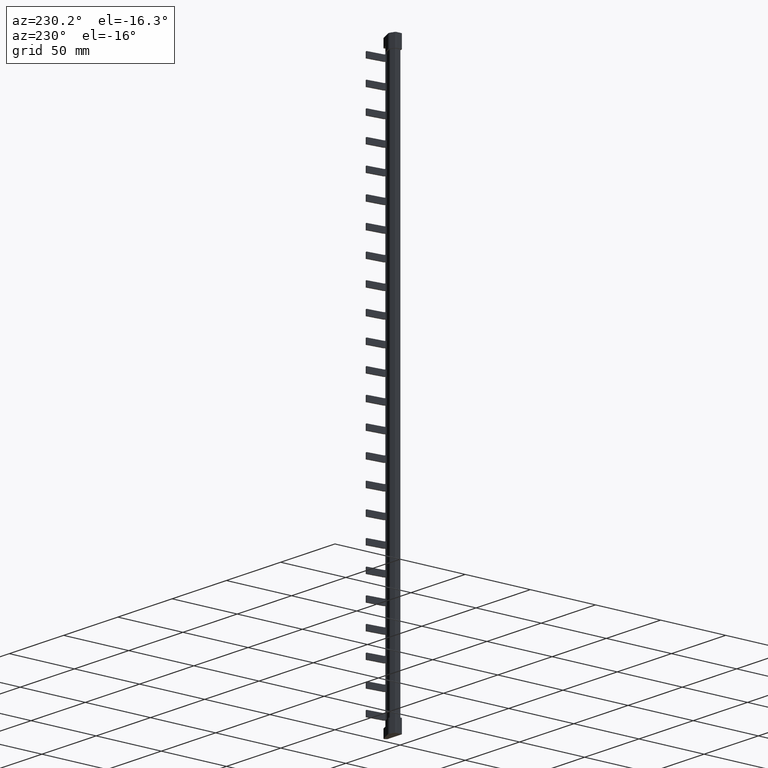
[diagram: clean part render]
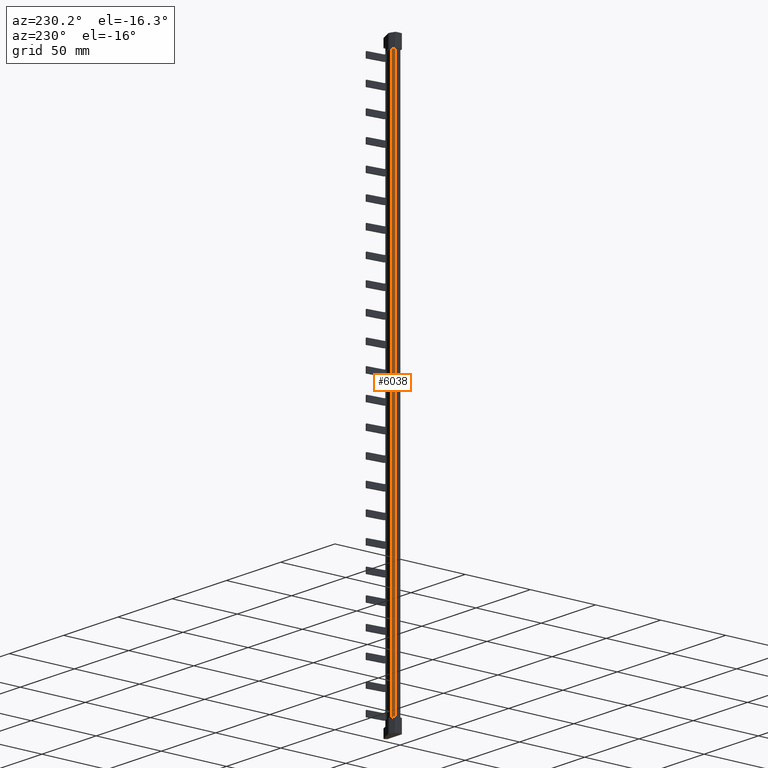
[diagram: same view with one face highlighted and labeled with its STEP entity id]
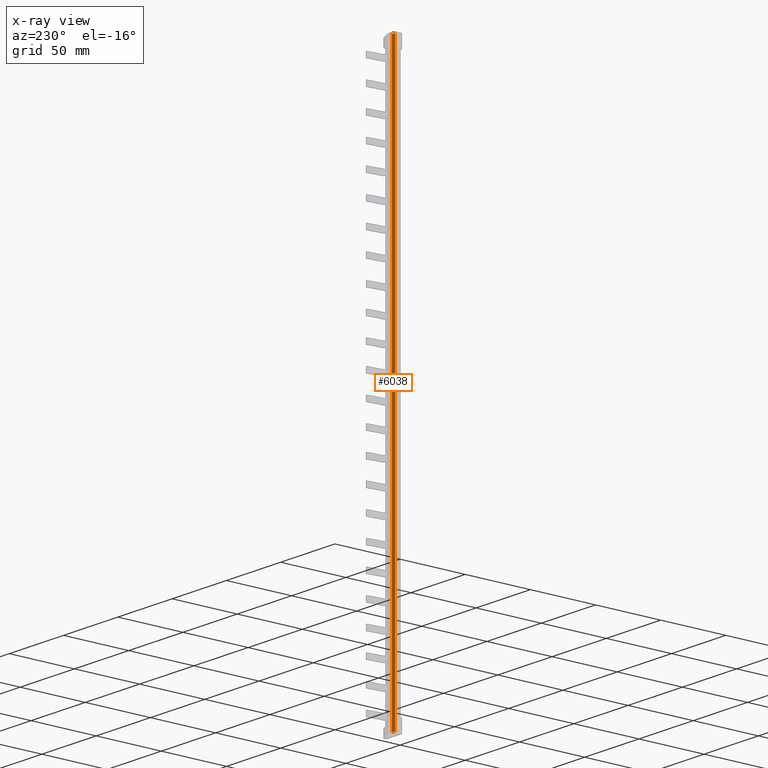
[diagram: x-ray of the same camera — body ghosted, the highlighted face saturated]
A machine part, auxiliary view. The second image highlights one B-rep face of the part: STEP entity #6038.
The next image is the same camera in x-ray: the body ghosted, the highlighted face saturated — about 0% of this face is hidden behind the body in this view.
In plain terms, the highlighted planar face has unit normal (-0.3358, 0.9419, 0).
Its self-contained STEP definition (entity closure, byte-faithful):
#2735 = ORIENTED_EDGE ( 'NONE', *, *, #19089, .F. ) ;
#2747 = ORIENTED_EDGE ( 'NONE', *, *, #19090, .T. ) ;
#2752 = ORIENTED_EDGE ( 'NONE', *, *, #26541, .T. ) ;
#2764 = ORIENTED_EDGE ( 'NONE', *, *, #26512, .T. ) ;
#2772 = ORIENTED_EDGE ( 'NONE', *, *, #19074, .T. ) ;
#2831 = ORIENTED_EDGE ( 'NONE', *, *, #19118, .F. ) ;
#3288 = EDGE_LOOP ( 'NONE', ( #2735, #2831, #2764, #2752, #2772, #2747 ) ) ;
#3729 = AXIS2_PLACEMENT_3D ( 'NONE', #28381, #28384, #28385 ) ;
#6038 = ADVANCED_FACE ( 'NONE', ( #28379 ), #28362, .T. ) ;
#8818 = DIRECTION ( 'NONE',  ( 0.0000000000000000000, 0.0000000000000000000, -1.000000000000000000 ) ) ;
#8874 = CARTESIAN_POINT ( 'NONE',  ( 1.856511742230759100, 4.798317562778330500, 199.0000000000000000 ) ) ;
#8926 = LINE ( 'NONE', #8874, #18200 ) ;
#9002 = LINE ( 'NONE', #9012, #18163 ) ;
#9009 = DIRECTION ( 'NONE',  ( 0.9419238204339639400, 0.3358266167222092600, 0.0000000000000000000 ) ) ;
#9012 = CARTESIAN_POINT ( 'NONE',  ( 1.856511742205581700, 4.798317562769354600, 199.0000000000000000 ) ) ;
#9014 = LINE ( 'NONE', #9027, #18198 ) ;
#9025 = DIRECTION ( 'NONE',  ( -5.795296779417600800E-024, -2.066212647044286700E-024, -1.000000000000000000 ) ) ;
#9027 = CARTESIAN_POINT ( 'NONE',  ( 1.856511742230759100, 4.798317562778330500, -210.0000000000000300 ) ) ;
#9189 = CARTESIAN_POINT ( 'NONE',  ( -0.2554380165529224200, 4.045338471695525400, 199.0000000000000000 ) ) ;
#9245 = DIRECTION ( 'NONE',  ( 0.0000000000000000000, 0.0000000000000000000, -1.000000000000000000 ) ) ;
#9251 = LINE ( 'NONE', #9189, #17357 ) ;
#9504 = CARTESIAN_POINT ( 'NONE',  ( 1.856511742230752000, 4.798317562778350100, -200.9000000000000100 ) ) ;
#9516 = CARTESIAN_POINT ( 'NONE',  ( 1.856511742230779300, 4.798317562778279000, -210.0000000000000000 ) ) ;
#9524 = CARTESIAN_POINT ( 'NONE',  ( -0.2554380165529274200, 4.045338471695533400, -210.0000000000000000 ) ) ;
#10527 = CARTESIAN_POINT ( 'NONE',  ( -0.2554380165529274200, 4.045338471695533400, 219.0000000000000000 ) ) ;
#10559 = CARTESIAN_POINT ( 'NONE',  ( 1.856511742230778900, 4.798317562778279000, 219.0000000000000000 ) ) ;
#10632 = CARTESIAN_POINT ( 'NONE',  ( 1.856511742230752000, 4.798317562778350100, 209.9000000000000100 ) ) ;
#17357 = VECTOR ( 'NONE', #9245, 1000.000000000000000 ) ;
#18163 = VECTOR ( 'NONE', #9025, 1000.000000000000000 ) ;
#18198 = VECTOR ( 'NONE', #9009, 1000.000000000000100 ) ;
#18200 = VECTOR ( 'NONE', #8818, 1000.000000000000000 ) ;
#19074 = EDGE_CURVE ( 'NONE', #35219, #35854, #8926, .T. ) ;
#19089 = EDGE_CURVE ( 'NONE', #35879, #35896, #9014, .T. ) ;
#19090 = EDGE_CURVE ( 'NONE', #35854, #35896, #9002, .T. ) ;
#19118 = EDGE_CURVE ( 'NONE', #35173, #35879, #9251, .T. ) ;
#25147 = DIRECTION ( 'NONE',  ( 0.0000000000000000000, 0.0000000000000000000, -1.000000000000000000 ) ) ;
#25149 = CARTESIAN_POINT ( 'NONE',  ( 1.856511742230759100, 4.798317562778330500, 199.0000000000000000 ) ) ;
#25153 = LINE ( 'NONE', #25149, #30860 ) ;
#25656 = LINE ( 'NONE', #25658, #30766 ) ;
#25658 = CARTESIAN_POINT ( 'NONE',  ( 1.856511742230759100, 4.798317562778330500, 219.0000000000000000 ) ) ;
#25681 = DIRECTION ( 'NONE',  ( 0.9419238204339639400, 0.3358266167222092600, 0.0000000000000000000 ) ) ;
#26512 = EDGE_CURVE ( 'NONE', #35173, #35223, #25656, .T. ) ;
#26541 = EDGE_CURVE ( 'NONE', #35223, #35219, #25153, .T. ) ;
#28362 = PLANE ( 'NONE',  #3729 ) ;
#28379 = FACE_OUTER_BOUND ( 'NONE', #3288, .T. ) ;
#28381 = CARTESIAN_POINT ( 'NONE',  ( 1.856511742230759100, 4.798317562778330500, 199.0000000000000000 ) ) ;
#28384 = DIRECTION ( 'NONE',  ( -0.3358266167222092600, 0.9419238204339639400, 0.0000000000000000000 ) ) ;
#28385 = DIRECTION ( 'NONE',  ( -0.9419238204339639400, -0.3358266167222092600, 0.0000000000000000000 ) ) ;
#30766 = VECTOR ( 'NONE', #25681, 1000.000000000000100 ) ;
#30860 = VECTOR ( 'NONE', #25147, 1000.000000000000000 ) ;
#35173 = VERTEX_POINT ( 'NONE', #10527 ) ;
#35219 = VERTEX_POINT ( 'NONE', #10632 ) ;
#35223 = VERTEX_POINT ( 'NONE', #10559 ) ;
#35854 = VERTEX_POINT ( 'NONE', #9504 ) ;
#35879 = VERTEX_POINT ( 'NONE', #9524 ) ;
#35896 = VERTEX_POINT ( 'NONE', #9516 ) ;